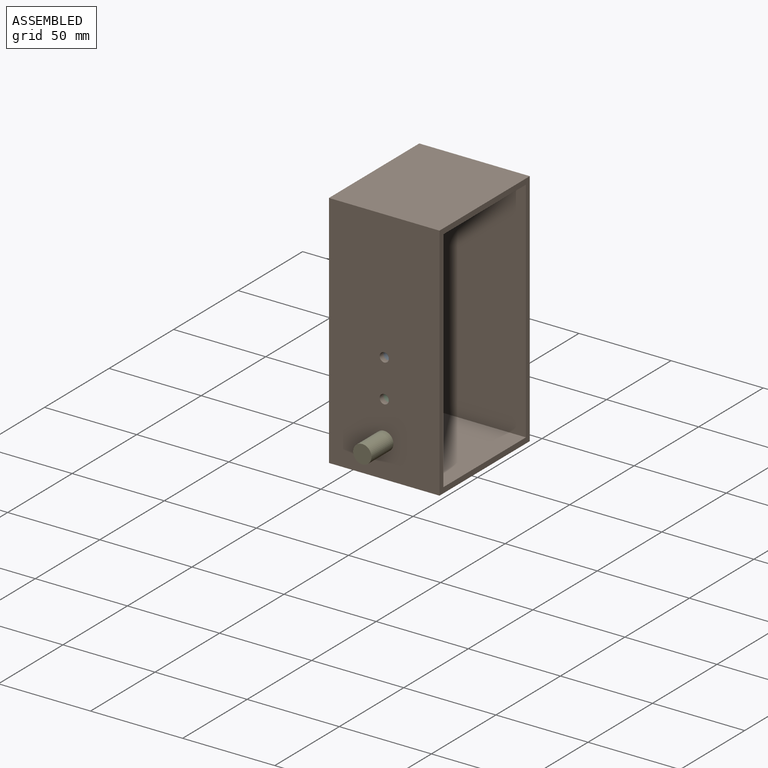
[diagram: assembled view]
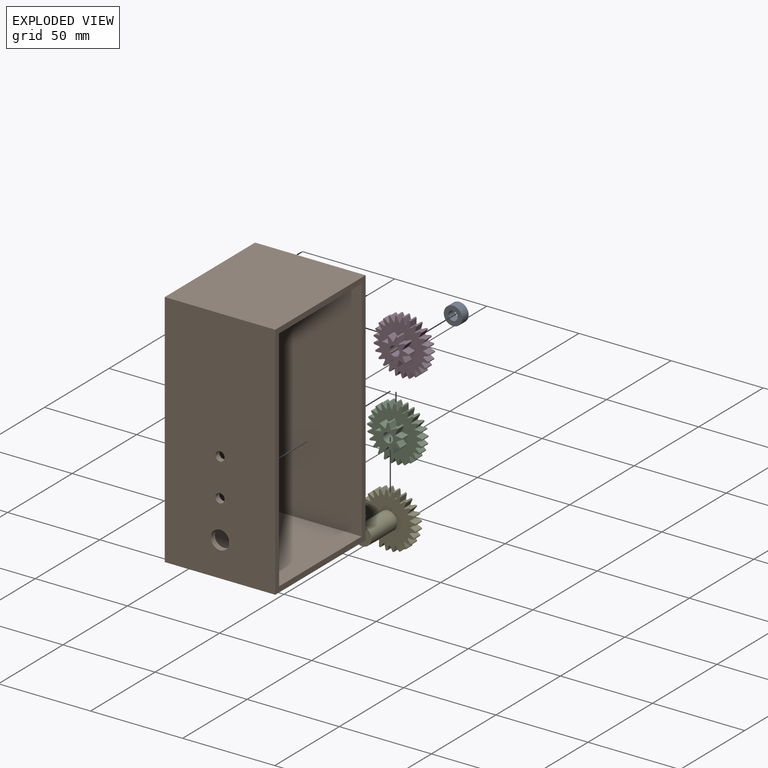
[diagram: exploded view]
GUIDED TOUR — MATED ASSEMBLY (Onshape document 443d9a24dce7691523443885, AutoMate assembly 443d9a24dce7691523443885_415664b027d2ea823bd47194_519f001d2ef782db38663c54_default)

This assembly has 5 components, labeled P0..P4 below (a component is one placed occurrence of a part; the same part can appear more than once), held together by 4 mates. A mate is a constraint between two components; its type names the relative motion it leaves free:
  PIN_SLOT — leaves rotation about the listed axis plus translation along a slot free,
  REVOLUTE — leaves rotation about the listed axis free (a hinge).
Axis/direction vectors are unit vectors and 'through' points are millimeter coordinates, both in the assembly's world frame.

MATES
  1. PIN_SLOT "Pin slot 4": P3 <-> P0, axis (0.000, -1.000, 0.000) through (14.98, 14.29, 70.05) mm
  2. PIN_SLOT "Pin slot 1": P2 <-> P1, axis (0.000, -1.000, 0.000) through (14.98, 9.29, 49.55) mm
  3. REVOLUTE "Revolute 1": P4 <-> P1, axis (0.000, 1.000, 0.000) through (14.98, 9.29, 29.05) mm
  4. PIN_SLOT "Pin slot 3": P0 <-> P1, axis (0.000, -1.000, 0.000) through (14.98, 9.29, 70.05) mm

ASSEMBLY ORDER
  1. P3 — the base component [order verified]
  2. P0 [order verified]
  3. P2 [order verified]
  4. P4 [order verified]
  5. P1 [order verified]
(P2, P4 verified with a relaxed clearance tolerance: the source model stores slight part interference there.)
Order-tag legend:
  [order verified] — this step's position reverses a verified removal order: the component was checked to insert without passing through the ones already placed.

Of the 5 components, 5 carry the full construction recipe — the FeatureScript program that regenerates the part's solid from scratch; the rest are supplied as boundary geometry only.
Each toured component is shown spotlighted twice — in the assembled view, then in the exploded view, where a leader line traces a displaced component back to its assembled socket (saturated green if recipe-attached, orange if geometry-only; every other component desaturated gray) — followed by its recipe or geometry summary and the mates that hold it.
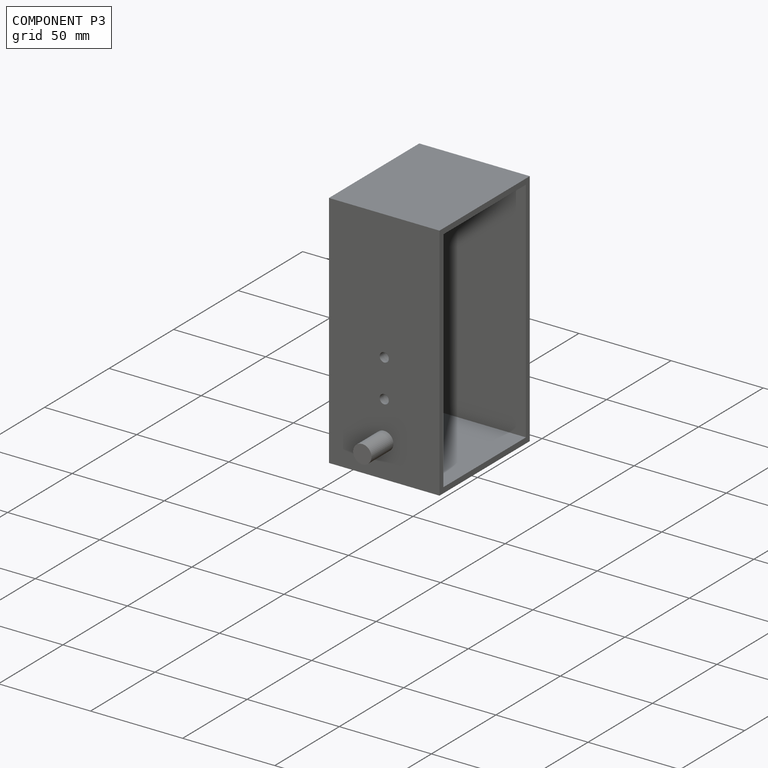
[diagram: component P3 — assembled]
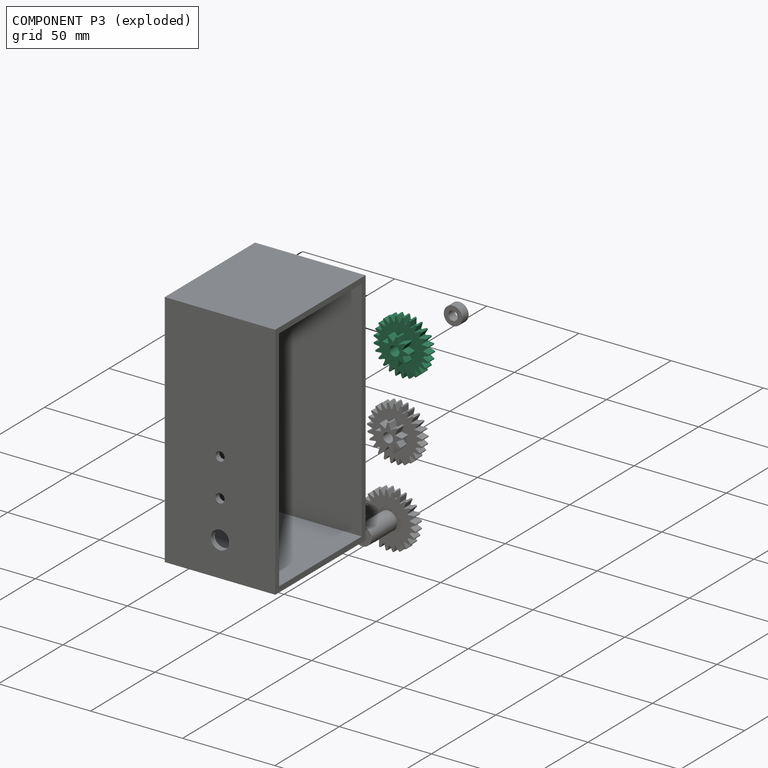
[diagram: component P3 — exploded]
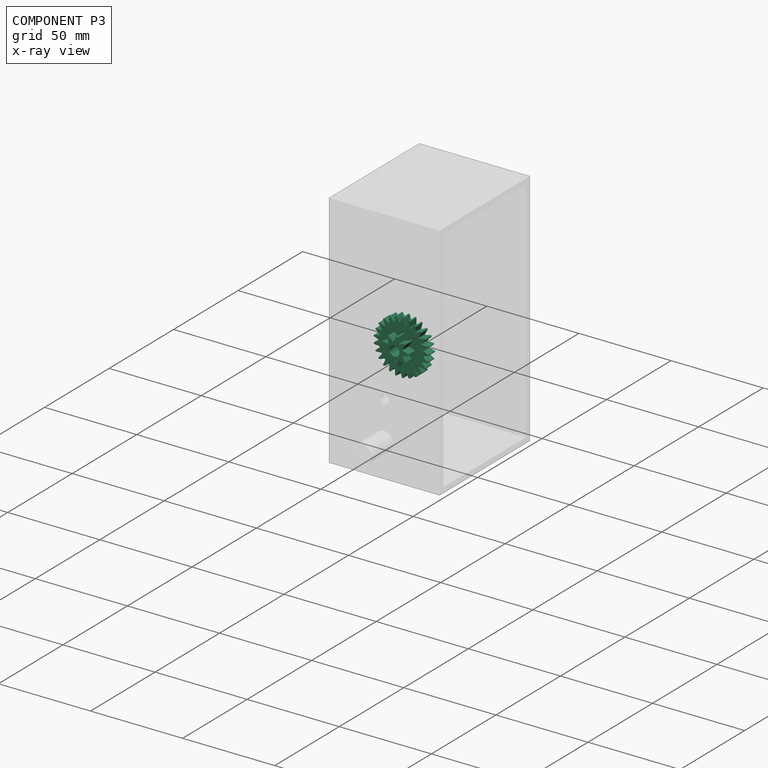
[diagram: component P3 — x-ray view]
COMPONENT P3 — same part as P2 (CADFS 00214775); its construction recipe is shown at P2.
Held by: PIN_SLOT mate "Pin slot 4" to P0.
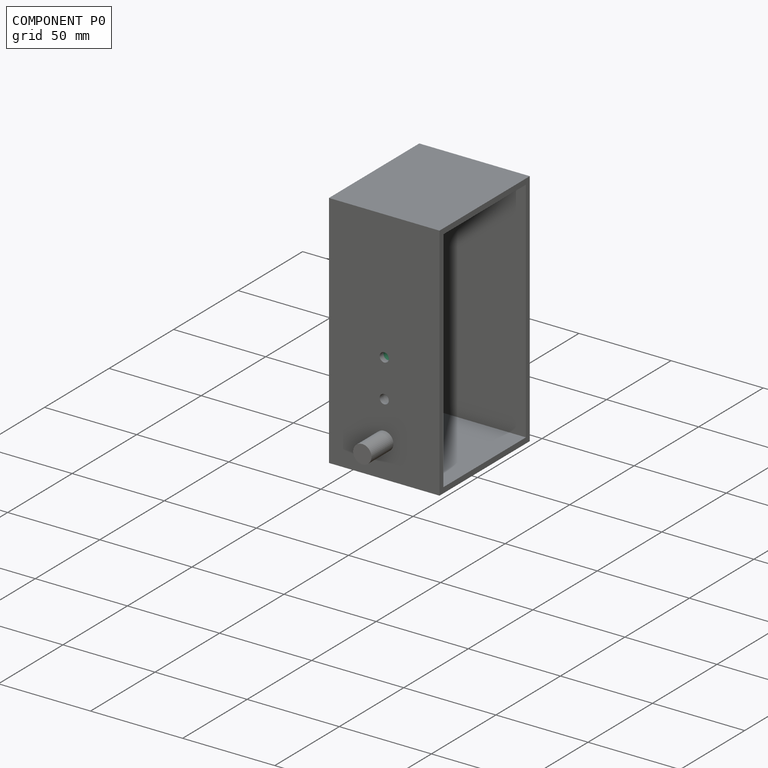
[diagram: component P0 — assembled]
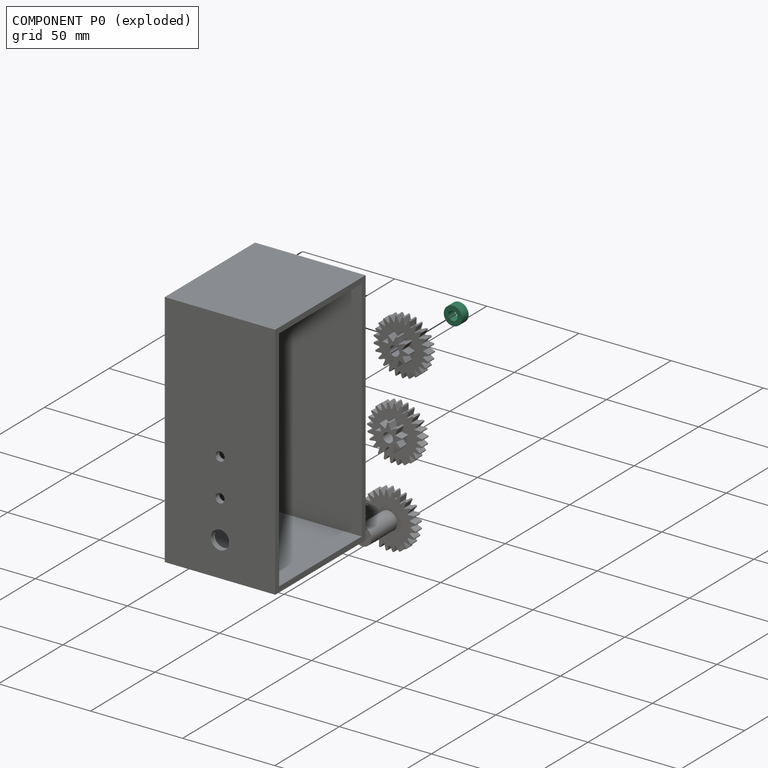
[diagram: component P0 — exploded]
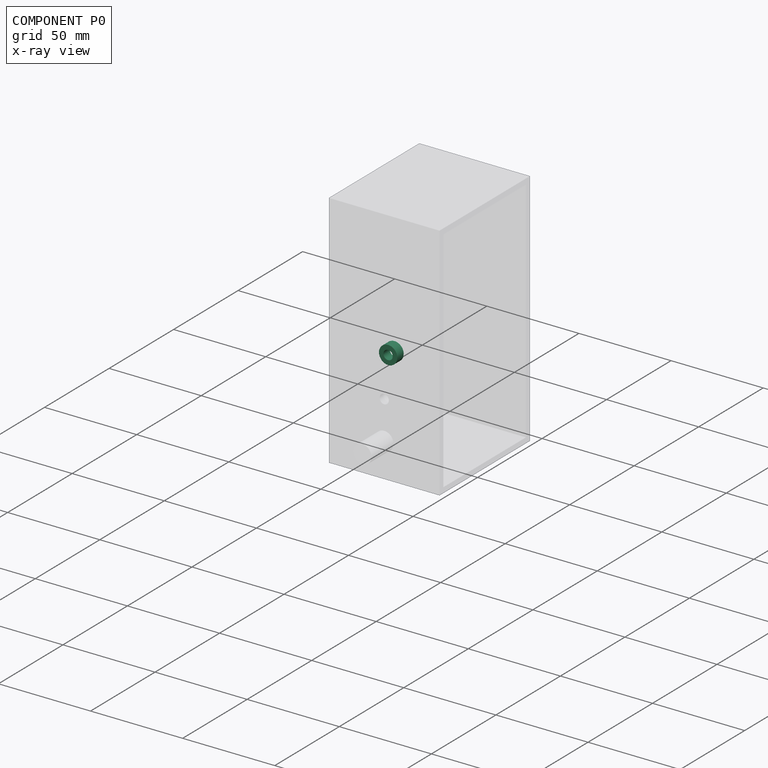
[diagram: component P0 — x-ray view]
COMPONENT P0 — recipe-attached (CADFS 00214777, mesh-verified: the recipe's output STEP matches this component's geometry to below the mesh-comparison resolution (tessellation chordal tolerance ~0.0225 mm)).
Held by: PIN_SLOT mate "Pin slot 4" to P3; PIN_SLOT mate "Pin slot 3" to P1.
Construction recipe (FeatureScript — the CAD program that rebuilds this solid; sketch coordinates are in the units given by the * unit suffixes, e.g. mm):

FeatureScript 1511;
import(path : "onshape/std/geometry.fs", version : "1511.0");
import(path : "onshape/std/common.fs", version : "1511.0");
const mm = millimeter;
const VERTEX = EntityType.VERTEX;
const EDGE = EntityType.EDGE;
const FACE = EntityType.FACE;
const BODY = EntityType.BODY;
function v(x, y){return vector(x, y);}
function OD(order){return orderDisambiguation(order);}
function OSD(set){return originalSetDisambiguation(set);}
function TD(topology){return topologyDisambiguation(topology);}
function TDD(query){return trueDependencyDisambiguation(query);}
function sQuery(a, b, c) {return sketchEntityQuery(a, b, c);}

annotation { "Feature Type Name" : "Feature", "Feature Type Description" : "" }
export const myFeature = defineFeature(function(context is Context, id is Id, definition is map)
    precondition{}
    {
        {
            var Q0;
            Q0=qCreatedBy(makeId("Right.planeOp"),FACE);
            var sketch = newSketch(context, id + "F0", { "sketchPlane" : qUnion([Q0])});
            skCircle(sketch, "E0", {"center": v(0, 0) * mm, "radius": 5 * mm});
            skCircle(sketch, "E1", {"center": v(0, 0) * mm, "radius": 2.5 * mm});
            skSolve(sketch);
        }
        {
            var Q0;
            Q0=makeQuery(id+"F0.imprint","IMPRINT",FACE,{"disambiguationData":[TD([[makeQuery(id+"F0.imprint","IMPRINT",EDGE,{"derivedFrom":sQuery(id+"F0.wireOp",EDGE,"E0")}),1.0]])]});
            extrude(context, id + "F1", {"entities" : qUnion([Q0]), "depth" : 5 * mm});
        }
    });
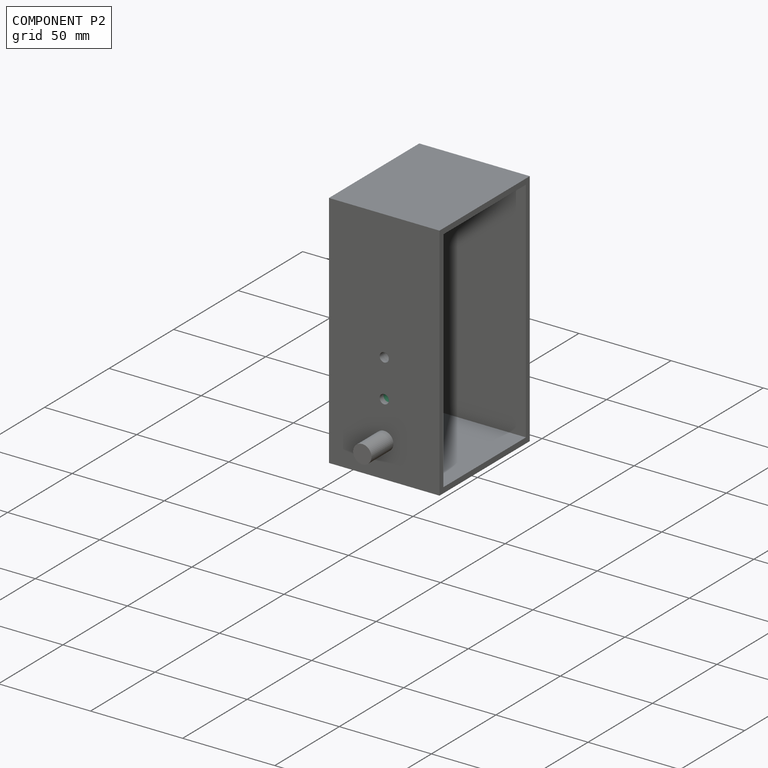
[diagram: component P2 — assembled]
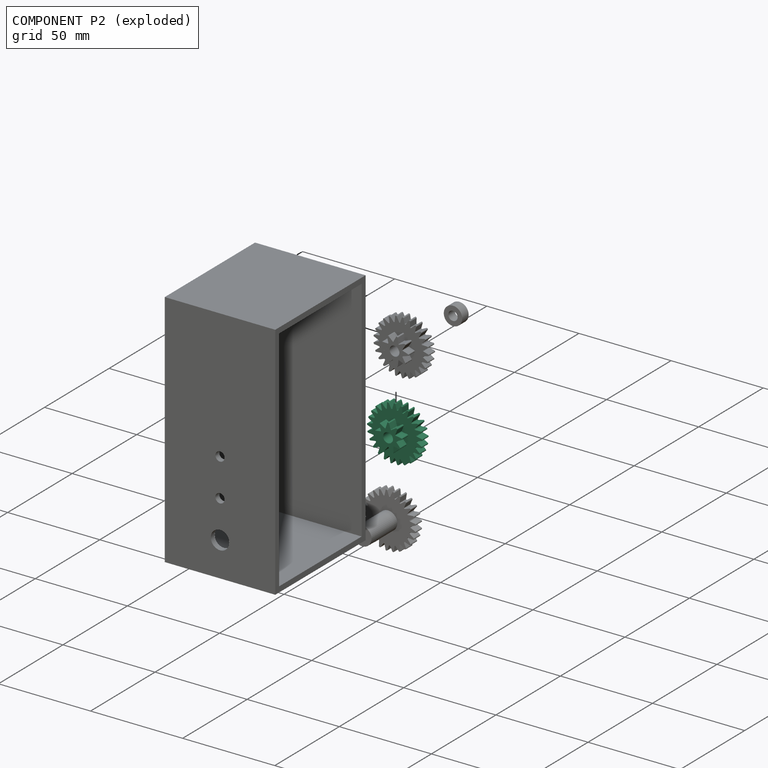
[diagram: component P2 — exploded]
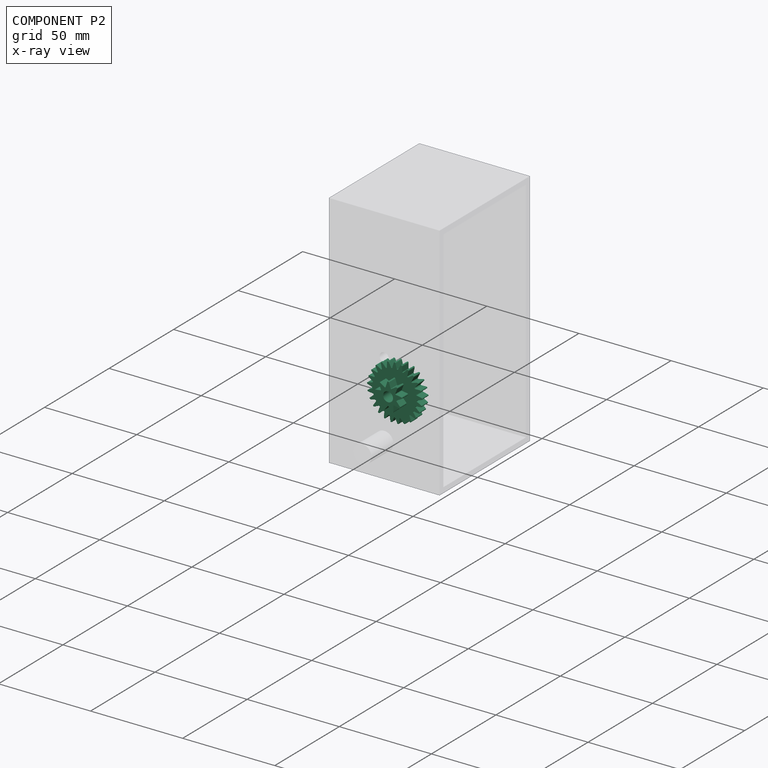
[diagram: component P2 — x-ray view]
COMPONENT P2 — recipe-attached (CADFS 00214775, mesh-verified: the recipe's output STEP matches this component's geometry to below the mesh-comparison resolution (tessellation chordal tolerance ~0.0652 mm)).
Held by: PIN_SLOT mate "Pin slot 1" to P1.
Construction recipe (FeatureScript — the CAD program that rebuilds this solid; sketch coordinates are in the units given by the * unit suffixes, e.g. mm):

FeatureScript 1511;
import(path : "onshape/std/geometry.fs", version : "1511.0");
import(path : "onshape/std/common.fs", version : "1511.0");
const mm = millimeter;
const VERTEX = EntityType.VERTEX;
const EDGE = EntityType.EDGE;
const FACE = EntityType.FACE;
const BODY = EntityType.BODY;
function v(x, y){return vector(x, y);}
function OD(order){return orderDisambiguation(order);}
function OSD(set){return originalSetDisambiguation(set);}
function TD(topology){return topologyDisambiguation(topology);}
function TDD(query){return trueDependencyDisambiguation(query);}
function sQuery(a, b, c) {return sketchEntityQuery(a, b, c);}

annotation { "Feature Type Name" : "Feature", "Feature Type Description" : "" }
export const myFeature = defineFeature(function(context is Context, id is Id, definition is map)
    precondition{}
    {
        {
            var Q0;
            Q0=qCreatedBy(makeId("Right.planeOp"),FACE);
            var sketch = newSketch(context, id + "F0", { "sketchPlane" : qUnion([Q0])});
            skArc(sketch, "E0", {"start": v(0.48, 14.64) * mm, "mid": v(0, 15) * mm, "end": v(-0.48, 14.64) * mm});
            skLineSegment(sketch, "E1", {"start": v(-0.48, 14.64) * mm, "end": v(-1.25, 11.93) * mm});
            skLineSegment(sketch, "E2.MirrorCS", {"start": v(0.48, 14.64) * mm, "end": v(1.25, 11.93) * mm});
            skCircle(sketch, "E3", {"center": v(0, 0) * mm, "radius": 12 * mm});
            skLineSegment(sketch, "E4", {"start": v(0, 0) * mm, "end": v(0, 9.86) * mm, "construction": true});
            skLineSegment(sketch, "E5.1.0", {"start": v(-4.1, 14.06) * mm, "end": v(-4.18, 11.25) * mm});
            skArc(sketch, "E5.1.1", {"start": v(-3.17, 14.3) * mm, "mid": v(-3.73, 14.53) * mm, "end": v(-4.1, 14.06) * mm});
            skLineSegment(sketch, "E5.1.2", {"start": v(-3.17, 14.3) * mm, "end": v(-1.76, 11.87) * mm});
            skLineSegment(sketch, "E5.2.0", {"start": v(-7.47, 12.6) * mm, "end": v(-6.85, 9.86) * mm});
            skArc(sketch, "E5.2.1", {"start": v(-6.63, 13.06) * mm, "mid": v(-7.23, 13.14) * mm, "end": v(-7.47, 12.6) * mm});
            skLineSegment(sketch, "E5.2.2", {"start": v(-6.63, 13.06) * mm, "end": v(-4.65, 11.06) * mm});
            skLineSegment(sketch, "E5.3.0", {"start": v(-10.37, 10.34) * mm, "end": v(-9.08, 7.84) * mm});
            skArc(sketch, "E5.3.1", {"start": v(-9.67, 11) * mm, "mid": v(-10.27, 10.93) * mm, "end": v(-10.37, 10.34) * mm});
            skLineSegment(sketch, "E5.3.2", {"start": v(-9.67, 11) * mm, "end": v(-7.26, 9.56) * mm});
            skArc(sketch, "E5.3.3", {"start": v(-9.08, 7.84) * mm, "mid": v(8.21, -8.75) * mm, "end": v(-7.26, 9.56) * mm});
            skLineSegment(sketch, "E5.4.0", {"start": v(-12.62, 7.44) * mm, "end": v(-10.75, 5.34) * mm});
            skArc(sketch, "E5.4.1", {"start": v(-12.1, 8.25) * mm, "mid": v(-12.66, 8.04) * mm, "end": v(-12.62, 7.44) * mm});
            skLineSegment(sketch, "E5.4.2", {"start": v(-12.1, 8.25) * mm, "end": v(-9.4, 7.45) * mm});
            skLineSegment(sketch, "E5.5.0", {"start": v(-14.07, 4.07) * mm, "end": v(-11.74, 2.5) * mm});
            skArc(sketch, "E5.5.1", {"start": v(-13.77, 4.98) * mm, "mid": v(-14.27, 4.64) * mm, "end": v(-14.07, 4.07) * mm});
            skLineSegment(sketch, "E5.5.2", {"start": v(-13.77, 4.98) * mm, "end": v(-10.96, 4.88) * mm});
            skLineSegment(sketch, "E5.6.0", {"start": v(-14.64, 0.44) * mm, "end": v(-11.99, -0.5) * mm});
            skArc(sketch, "E5.6.1", {"start": v(-14.58, 1.4) * mm, "mid": v(-14.97, 0.94) * mm, "end": v(-14.64, 0.44) * mm});
            skLineSegment(sketch, "E5.6.2", {"start": v(-14.58, 1.4) * mm, "end": v(-11.83, 2) * mm});
            skLineSegment(sketch, "E5.7.0", {"start": v(-14.29, -3.22) * mm, "end": v(-11.49, -3.47) * mm});
            skArc(sketch, "E5.7.1", {"start": v(-14.47, -2.27) * mm, "mid": v(-14.73, -2.81) * mm, "end": v(-14.29, -3.22) * mm});
            skLineSegment(sketch, "E5.7.2", {"start": v(-14.47, -2.27) * mm, "end": v(-11.96, -1) * mm});
            skLineSegment(sketch, "E5.8.0", {"start": v(-13.04, -6.67) * mm, "end": v(-10.27, -6.21) * mm});
            skArc(sketch, "E5.8.1", {"start": v(-13.45, -5.8) * mm, "mid": v(-13.57, -6.39) * mm, "end": v(-13.04, -6.67) * mm});
            skLineSegment(sketch, "E5.8.2", {"start": v(-13.45, -5.8) * mm, "end": v(-11.33, -3.95) * mm});
            skLineSegment(sketch, "E5.9.0", {"start": v(-10.97, -9.7) * mm, "end": v(-8.4, -8.57) * mm});
            skArc(sketch, "E5.9.1", {"start": v(-11.58, -8.96) * mm, "mid": v(-11.56, -9.56) * mm, "end": v(-10.97, -9.7) * mm});
            skLineSegment(sketch, "E5.9.2", {"start": v(-11.58, -8.96) * mm, "end": v(-10, -6.64) * mm});
            skLineSegment(sketch, "E5.10.0", {"start": v(-8.21, -12.12) * mm, "end": v(-6, -10.4) * mm});
            skArc(sketch, "E5.10.1", {"start": v(-9, -11.56) * mm, "mid": v(-8.82, -12.14) * mm, "end": v(-8.21, -12.12) * mm});
            skLineSegment(sketch, "E5.10.2", {"start": v(-9, -11.56) * mm, "end": v(-8.03, -8.92) * mm});
            skLineSegment(sketch, "E5.11.0", {"start": v(-4.94, -13.79) * mm, "end": v(-3.23, -11.56) * mm});
            skArc(sketch, "E5.11.1", {"start": v(-5.84, -13.43) * mm, "mid": v(-5.52, -13.95) * mm, "end": v(-4.94, -13.79) * mm});
            skLineSegment(sketch, "E5.11.2", {"start": v(-5.84, -13.43) * mm, "end": v(-5.56, -10.64) * mm});
            skArc(sketch, "E5.11.3", {"start": v(-9.08, 7.84) * mm, "mid": v(8.21, -8.75) * mm, "end": v(-7.26, 9.56) * mm});
            skLineSegment(sketch, "E5.12.0", {"start": v(-1.36, -14.58) * mm, "end": v(-0.25, -12) * mm});
            skArc(sketch, "E5.12.1", {"start": v(-2.31, -14.46) * mm, "mid": v(-1.88, -14.88) * mm, "end": v(-1.36, -14.58) * mm});
            skLineSegment(sketch, "E5.12.2", {"start": v(-2.31, -14.46) * mm, "end": v(-2.74, -11.68) * mm});
            skLineSegment(sketch, "E5.13.0", {"start": v(2.31, -14.46) * mm, "end": v(2.74, -11.68) * mm});
            skArc(sketch, "E5.13.1", {"start": v(1.36, -14.58) * mm, "mid": v(1.88, -14.88) * mm, "end": v(2.31, -14.46) * mm});
            skLineSegment(sketch, "E5.13.2", {"start": v(1.36, -14.58) * mm, "end": v(0.25, -12) * mm});
            skLineSegment(sketch, "E5.14.0", {"start": v(5.84, -13.43) * mm, "end": v(5.56, -10.64) * mm});
            skArc(sketch, "E5.14.1", {"start": v(4.94, -13.79) * mm, "mid": v(5.52, -13.95) * mm, "end": v(5.84, -13.43) * mm});
            skLineSegment(sketch, "E5.14.2", {"start": v(4.94, -13.79) * mm, "end": v(3.23, -11.56) * mm});
            skLineSegment(sketch, "E5.15.0", {"start": v(9, -11.56) * mm, "end": v(8.03, -8.92) * mm});
            skArc(sketch, "E5.15.1", {"start": v(8.21, -12.12) * mm, "mid": v(8.82, -12.14) * mm, "end": v(9, -11.56) * mm});
            skLineSegment(sketch, "E5.15.2", {"start": v(8.21, -12.12) * mm, "end": v(6, -10.4) * mm});
            skArc(sketch, "E5.15.3", {"start": v(-9.08, 7.84) * mm, "mid": v(8.21, -8.75) * mm, "end": v(-7.26, 9.56) * mm});
            skLineSegment(sketch, "E5.16.0", {"start": v(11.58, -8.96) * mm, "end": v(10, -6.64) * mm});
            skArc(sketch, "E5.16.1", {"start": v(10.97, -9.7) * mm, "mid": v(11.56, -9.56) * mm, "end": v(11.58, -8.96) * mm});
            skLineSegment(sketch, "E5.16.2", {"start": v(10.97, -9.7) * mm, "end": v(8.4, -8.57) * mm});
            skLineSegment(sketch, "E5.17.0", {"start": v(13.45, -5.8) * mm, "end": v(11.33, -3.95) * mm});
            skArc(sketch, "E5.17.1", {"start": v(13.04, -6.67) * mm, "mid": v(13.57, -6.39) * mm, "end": v(13.45, -5.8) * mm});
            skLineSegment(sketch, "E5.17.2", {"start": v(13.04, -6.67) * mm, "end": v(10.27, -6.21) * mm});
            skLineSegment(sketch, "E5.18.0", {"start": v(14.47, -2.27) * mm, "end": v(11.96, -1) * mm});
            skArc(sketch, "E5.18.1", {"start": v(14.29, -3.22) * mm, "mid": v(14.73, -2.81) * mm, "end": v(14.47, -2.27) * mm});
            skLineSegment(sketch, "E5.18.2", {"start": v(14.29, -3.22) * mm, "end": v(11.49, -3.47) * mm});
            skLineSegment(sketch, "E5.19.0", {"start": v(14.58, 1.4) * mm, "end": v(11.83, 2) * mm});
            skArc(sketch, "E5.19.1", {"start": v(14.64, 0.44) * mm, "mid": v(14.97, 0.94) * mm, "end": v(14.58, 1.4) * mm});
            skLineSegment(sketch, "E5.19.2", {"start": v(14.64, 0.44) * mm, "end": v(11.99, -0.5) * mm});
            skLineSegment(sketch, "E5.20.0", {"start": v(13.77, 4.98) * mm, "end": v(10.96, 4.88) * mm});
            skArc(sketch, "E5.20.1", {"start": v(14.07, 4.07) * mm, "mid": v(14.27, 4.64) * mm, "end": v(13.77, 4.98) * mm});
            skLineSegment(sketch, "E5.20.2", {"start": v(14.07, 4.07) * mm, "end": v(11.74, 2.5) * mm});
            skLineSegment(sketch, "E5.21.0", {"start": v(12.1, 8.25) * mm, "end": v(9.4, 7.45) * mm});
            skArc(sketch, "E5.21.1", {"start": v(12.62, 7.44) * mm, "mid": v(12.66, 8.04) * mm, "end": v(12.1, 8.25) * mm});
            skLineSegment(sketch, "E5.21.2", {"start": v(12.62, 7.44) * mm, "end": v(10.75, 5.34) * mm});
            skLineSegment(sketch, "E5.22.0", {"start": v(9.67, 11) * mm, "end": v(7.26, 9.56) * mm});
            skArc(sketch, "E5.22.1", {"start": v(10.37, 10.34) * mm, "mid": v(10.27, 10.93) * mm, "end": v(9.67, 11) * mm});
            skLineSegment(sketch, "E5.22.2", {"start": v(10.37, 10.34) * mm, "end": v(9.08, 7.84) * mm});
            skLineSegment(sketch, "E6.2.23.0", {"start": v(6.63, 13.06) * mm, "end": v(4.65, 11.06) * mm});
            skArc(sketch, "E6.3.23.0", {"start": v(7.47, 12.6) * mm, "mid": v(7.23, 13.14) * mm, "end": v(6.63, 13.06) * mm});
            skLineSegment(sketch, "E6.7.23.0", {"start": v(7.47, 12.6) * mm, "end": v(6.85, 9.86) * mm});
            skLineSegment(sketch, "E6.2.24.0", {"start": v(3.17, 14.3) * mm, "end": v(1.76, 11.87) * mm});
            skArc(sketch, "E6.3.24.0", {"start": v(4.1, 14.06) * mm, "mid": v(3.73, 14.53) * mm, "end": v(3.17, 14.3) * mm});
            skLineSegment(sketch, "E6.7.24.0", {"start": v(4.1, 14.06) * mm, "end": v(4.18, 11.25) * mm});
            skSolve(sketch);
        }
        {
            var Q0;
            Q0=qSketchRegion(id+"F0",true);
            extrude(context, id + "F1", {"entities" : qUnion([Q0]), "depth" : 5 * mm});
        }
        {
            var Q0;
            Q0=makeQuery(id+"F1.opExtrude","CAP_FACE",FACE,{"disambiguationData":[OSD([sQuery(id+"F0.wireOp",EDGE,"E0"),sQuery(id+"F0.wireOp",EDGE,"E1"),sQuery(id+"F0.wireOp",EDGE,"E2.MirrorCS"),sQuery(id+"F0.wireOp",EDGE,"E5.1.0"),sQuery(id+"F0.wireOp",EDGE,"E5.1.1"),sQuery(id+"F0.wireOp",EDGE,"E5.1.2"),sQuery(id+"F0.wireOp",EDGE,"E5.2.0"),sQuery(id+"F0.wireOp",EDGE,"E5.2.1"),sQuery(id+"F0.wireOp",EDGE,"E5.2.2"),sQuery(id+"F0.wireOp",EDGE,"E5.3.0"),sQuery(id+"F0.wireOp",EDGE,"E5.3.1"),sQuery(id+"F0.wireOp",EDGE,"E5.3.2"),sQuery(id+"F0.wireOp",EDGE,"E5.4.0"),sQuery(id+"F0.wireOp",EDGE,"E5.4.1"),sQuery(id+"F0.wireOp",EDGE,"E5.4.2"),sQuery(id+"F0.wireOp",EDGE,"E5.5.0"),sQuery(id+"F0.wireOp",EDGE,"E5.5.1"),sQuery(id+"F0.wireOp",EDGE,"E5.5.2"),sQuery(id+"F0.wireOp",EDGE,"E5.6.0"),sQuery(id+"F0.wireOp",EDGE,"E5.6.1"),sQuery(id+"F0.wireOp",EDGE,"E5.6.2"),sQuery(id+"F0.wireOp",EDGE,"E5.7.0"),sQuery(id+"F0.wireOp",EDGE,"E5.7.1"),sQuery(id+"F0.wireOp",EDGE,"E5.7.2"),sQuery(id+"F0.wireOp",EDGE,"E5.8.0"),sQuery(id+"F0.wireOp",EDGE,"E5.8.1"),sQuery(id+"F0.wireOp",EDGE,"E5.8.2"),sQuery(id+"F0.wireOp",EDGE,"E5.9.0"),sQuery(id+"F0.wireOp",EDGE,"E5.9.1"),sQuery(id+"F0.wireOp",EDGE,"E5.9.2"),sQuery(id+"F0.wireOp",EDGE,"E5.10.0"),sQuery(id+"F0.wireOp",EDGE,"E5.10.1"),sQuery(id+"F0.wireOp",EDGE,"E5.10.2"),sQuery(id+"F0.wireOp",EDGE,"E5.11.0"),sQuery(id+"F0.wireOp",EDGE,"E5.11.1"),sQuery(id+"F0.wireOp",EDGE,"E5.11.2"),sQuery(id+"F0.wireOp",EDGE,"E5.12.0"),sQuery(id+"F0.wireOp",EDGE,"E5.12.1"),sQuery(id+"F0.wireOp",EDGE,"E5.12.2"),sQuery(id+"F0.wireOp",EDGE,"E5.13.0"),sQuery(id+"F0.wireOp",EDGE,"E5.13.1"),sQuery(id+"F0.wireOp",EDGE,"E5.13.2"),sQuery(id+"F0.wireOp",EDGE,"E5.14.0"),sQuery(id+"F0.wireOp",EDGE,"E5.14.1"),sQuery(id+"F0.wireOp",EDGE,"E5.14.2"),sQuery(id+"F0.wireOp",EDGE,"E5.15.0"),sQuery(id+"F0.wireOp",EDGE,"E5.15.1"),sQuery(id+"F0.wireOp",EDGE,"E5.15.2"),sQuery(id+"F0.wireOp",EDGE,"E5.16.0"),sQuery(id+"F0.wireOp",EDGE,"E5.16.1"),sQuery(id+"F0.wireOp",EDGE,"E5.16.2"),sQuery(id+"F0.wireOp",EDGE,"E5.17.0"),sQuery(id+"F0.wireOp",EDGE,"E5.17.1"),sQuery(id+"F0.wireOp",EDGE,"E5.17.2"),sQuery(id+"F0.wireOp",EDGE,"E5.18.0"),sQuery(id+"F0.wireOp",EDGE,"E5.18.1"),sQuery(id+"F0.wireOp",EDGE,"E5.18.2"),sQuery(id+"F0.wireOp",EDGE,"E5.19.0"),sQuery(id+"F0.wireOp",EDGE,"E5.19.1"),sQuery(id+"F0.wireOp",EDGE,"E5.19.2"),sQuery(id+"F0.wireOp",EDGE,"E5.20.0"),sQuery(id+"F0.wireOp",EDGE,"E5.20.1"),sQuery(id+"F0.wireOp",EDGE,"E5.20.2"),sQuery(id+"F0.wireOp",EDGE,"E5.21.0"),sQuery(id+"F0.wireOp",EDGE,"E5.21.1"),sQuery(id+"F0.wireOp",EDGE,"E5.21.2"),sQuery(id+"F0.wireOp",EDGE,"E5.22.0"),sQuery(id+"F0.wireOp",EDGE,"E5.22.1"),sQuery(id+"F0.wireOp",EDGE,"E5.22.2"),sQuery(id+"F0.wireOp",EDGE,"E6.2.23.0"),sQuery(id+"F0.wireOp",EDGE,"E6.3.23.0"),sQuery(id+"F0.wireOp",EDGE,"E6.7.23.0"),sQuery(id+"F0.wireOp",EDGE,"E6.2.24.0"),sQuery(id+"F0.wireOp",EDGE,"E6.3.24.0"),sQuery(id+"F0.wireOp",EDGE,"E6.7.24.0"),sQuery(id+"F0.wireOp",EDGE,"E3")])],"isStart":false});
            var sketch = newSketch(context, id + "F2", { "sketchPlane" : qUnion([Q0])});
            skCircle(sketch, "E7", {"center": v(0, 0) * mm, "radius": 7.5 * mm, "construction": true});
            skArc(sketch, "E8", {"start": v(0.48, 7.15) * mm, "mid": v(0, 7.5) * mm, "end": v(-0.48, 7.15) * mm});
            skLineSegment(sketch, "E9", {"start": v(-0.48, 7.15) * mm, "end": v(-1.41, 4.27) * mm});
            skLineSegment(sketch, "E10", {"start": v(0, 3.4) * mm, "end": v(0, 1.15) * mm, "construction": true});
            skLineSegment(sketch, "E11.MirrorCS", {"start": v(0.48, 7.15) * mm, "end": v(1.41, 4.27) * mm});
            skLineSegment(sketch, "E12.1.0", {"start": v(-4.96, 5.18) * mm, "end": v(-3.83, 2.37) * mm});
            skArc(sketch, "E12.1.1", {"start": v(-4.23, 5.79) * mm, "mid": v(-4.82, 5.75) * mm, "end": v(-4.96, 5.18) * mm});
            skLineSegment(sketch, "E12.1.2", {"start": v(-4.23, 5.79) * mm, "end": v(-1.66, 4.18) * mm});
            skLineSegment(sketch, "E12.2.0", {"start": v(-7.13, 0.77) * mm, "end": v(-4.45, -0.65) * mm});
            skArc(sketch, "E12.2.1", {"start": v(-6.96, 1.71) * mm, "mid": v(-7.39, 1.3) * mm, "end": v(-7.13, 0.77) * mm});
            skLineSegment(sketch, "E12.2.2", {"start": v(-6.96, 1.71) * mm, "end": v(-3.96, 2.13) * mm});
            skLineSegment(sketch, "E12.3.0", {"start": v(-5.96, -3.99) * mm, "end": v(-3, -3.36) * mm});
            skArc(sketch, "E12.3.1", {"start": v(-6.43, -3.17) * mm, "mid": v(-6.5, -3.75) * mm, "end": v(-5.96, -3.99) * mm});
            skLineSegment(sketch, "E12.3.2", {"start": v(-6.43, -3.17) * mm, "end": v(-4.4, -0.91) * mm});
            skLineSegment(sketch, "E12.4.0", {"start": v(-2, -6.89) * mm, "end": v(-0.13, -4.5) * mm});
            skArc(sketch, "E12.4.1", {"start": v(-2.9, -6.56) * mm, "mid": v(-2.57, -7.05) * mm, "end": v(-2, -6.89) * mm});
            skLineSegment(sketch, "E12.4.2", {"start": v(-2.9, -6.56) * mm, "end": v(-2.79, -3.53) * mm});
            skLineSegment(sketch, "E12.5.0", {"start": v(2.9, -6.56) * mm, "end": v(2.79, -3.53) * mm});
            skArc(sketch, "E12.5.1", {"start": v(2, -6.89) * mm, "mid": v(2.57, -7.05) * mm, "end": v(2.9, -6.56) * mm});
            skLineSegment(sketch, "E12.5.2", {"start": v(2, -6.89) * mm, "end": v(0.13, -4.5) * mm});
            skLineSegment(sketch, "E12.6.0", {"start": v(6.43, -3.17) * mm, "end": v(4.4, -0.91) * mm});
            skArc(sketch, "E12.6.1", {"start": v(5.96, -3.99) * mm, "mid": v(6.5, -3.75) * mm, "end": v(6.43, -3.17) * mm});
            skLineSegment(sketch, "E12.6.2", {"start": v(5.96, -3.99) * mm, "end": v(3, -3.36) * mm});
            skLineSegment(sketch, "E12.7.0", {"start": v(6.96, 1.71) * mm, "end": v(3.96, 2.13) * mm});
            skArc(sketch, "E12.7.1", {"start": v(7.13, 0.77) * mm, "mid": v(7.39, 1.3) * mm, "end": v(6.96, 1.71) * mm});
            skLineSegment(sketch, "E12.7.2", {"start": v(7.13, 0.77) * mm, "end": v(4.45, -0.65) * mm});
            skLineSegment(sketch, "E12.8.0", {"start": v(4.23, 5.79) * mm, "end": v(1.66, 4.18) * mm});
            skArc(sketch, "E12.8.1", {"start": v(4.96, 5.18) * mm, "mid": v(4.82, 5.75) * mm, "end": v(4.23, 5.79) * mm});
            skLineSegment(sketch, "E12.8.2", {"start": v(4.96, 5.18) * mm, "end": v(3.83, 2.37) * mm});
            skArc(sketch, "E13.trimOffspring", {"start": v(-1.41, 4.27) * mm, "mid": v(-1.54, 4.23) * mm, "end": v(-1.66, 4.18) * mm});
            skArc(sketch, "E14.trimOffspring", {"start": v(1.66, 4.18) * mm, "mid": v(1.54, 4.23) * mm, "end": v(1.41, 4.27) * mm});
            skArc(sketch, "E15.trimOffspring", {"start": v(3.96, 2.13) * mm, "mid": v(3.9, 2.25) * mm, "end": v(3.83, 2.37) * mm});
            skArc(sketch, "E16.trimOffspring", {"start": v(-4.45, -0.65) * mm, "mid": v(-4.43, -0.78) * mm, "end": v(-4.4, -0.91) * mm});
            skArc(sketch, "E17.trimOffspring", {"start": v(-3, -3.36) * mm, "mid": v(-2.9, -3.45) * mm, "end": v(-2.79, -3.53) * mm});
            skArc(sketch, "E18.trimOffspring", {"start": v(-0.13, -4.5) * mm, "mid": v(0, -4.5) * mm, "end": v(0.13, -4.5) * mm});
            skArc(sketch, "E19.trimOffspring", {"start": v(2.79, -3.53) * mm, "mid": v(2.9, -3.45) * mm, "end": v(3, -3.36) * mm});
            skArc(sketch, "E20.trimOffspring", {"start": v(4.4, -0.91) * mm, "mid": v(4.43, -0.78) * mm, "end": v(4.45, -0.65) * mm});
            skArc(sketch, "E21", {"start": v(-3.83, 2.37) * mm, "mid": v(-3.9, 2.25) * mm, "end": v(-3.96, 2.13) * mm});
            skSolve(sketch);
        }
        {
            var Q0;
            Q0=makeQuery(id+"F2.imprint","IMPRINT",FACE,{"disambiguationData":[TD([[makeQuery(id+"F2.imprint","IMPRINT",EDGE,{"derivedFrom":sQuery(id+"F2.wireOp",EDGE,"E8")}),1.0]])]});
            extrude(context, id + "F3", {"entities" : qUnion([Q0]), "operationType" : NewBodyOperationType.ADD, "depth" : 5 * mm});
        }
        {
            var Q0;
            Q0=makeQuery(id+"F3.opExtrude","CAP_FACE",FACE,{"disambiguationData":[OSD([sQuery(id+"F2.wireOp",EDGE,"E8"),sQuery(id+"F2.wireOp",EDGE,"E9"),sQuery(id+"F2.wireOp",EDGE,"E11.MirrorCS"),sQuery(id+"F2.wireOp",EDGE,"E12.1.0"),sQuery(id+"F2.wireOp",EDGE,"E12.1.1"),sQuery(id+"F2.wireOp",EDGE,"E12.1.2"),sQuery(id+"F2.wireOp",EDGE,"E12.2.0"),sQuery(id+"F2.wireOp",EDGE,"E12.2.1"),sQuery(id+"F2.wireOp",EDGE,"E12.2.2"),sQuery(id+"F2.wireOp",EDGE,"E12.3.0"),sQuery(id+"F2.wireOp",EDGE,"E12.3.1"),sQuery(id+"F2.wireOp",EDGE,"E12.3.2"),sQuery(id+"F2.wireOp",EDGE,"E12.4.0"),sQuery(id+"F2.wireOp",EDGE,"E12.4.1"),sQuery(id+"F2.wireOp",EDGE,"E12.4.2"),sQuery(id+"F2.wireOp",EDGE,"E12.5.0"),sQuery(id+"F2.wireOp",EDGE,"E12.5.1"),sQuery(id+"F2.wireOp",EDGE,"E12.5.2"),sQuery(id+"F2.wireOp",EDGE,"E12.6.0"),sQuery(id+"F2.wireOp",EDGE,"E12.6.1"),sQuery(id+"F2.wireOp",EDGE,"E12.6.2"),sQuery(id+"F2.wireOp",EDGE,"E12.7.0"),sQuery(id+"F2.wireOp",EDGE,"E12.7.1"),sQuery(id+"F2.wireOp",EDGE,"E12.7.2"),sQuery(id+"F2.wireOp",EDGE,"E12.8.0"),sQuery(id+"F2.wireOp",EDGE,"E12.8.1"),sQuery(id+"F2.wireOp",EDGE,"E12.8.2"),sQuery(id+"F2.wireOp",EDGE,"E13.trimOffspring"),sQuery(id+"F2.wireOp",EDGE,"E14.trimOffspring"),sQuery(id+"F2.wireOp",EDGE,"E15.trimOffspring"),sQuery(id+"F2.wireOp",EDGE,"E16.trimOffspring"),sQuery(id+"F2.wireOp",EDGE,"E17.trimOffspring"),sQuery(id+"F2.wireOp",EDGE,"E18.trimOffspring"),sQuery(id+"F2.wireOp",EDGE,"E19.trimOffspring"),sQuery(id+"F2.wireOp",EDGE,"E20.trimOffspring"),sQuery(id+"F2.wireOp",EDGE,"E21")])],"isStart":false});
            var sketch = newSketch(context, id + "F4", { "sketchPlane" : qUnion([Q0])});
            skCircle(sketch, "E22", {"center": v(0, 0) * mm, "radius": 2.66 * mm});
            skSolve(sketch);
        }
        {
            var Q0;
            Q0=makeQuery(id+"F4.imprint","IMPRINT",FACE,{"disambiguationData":[TD([[makeQuery(id+"F4.imprint","IMPRINT",EDGE,{"derivedFrom":sQuery(id+"F4.wireOp",EDGE,"E22")}),1.0]])]});
            extrude(context, id + "F5", {"entities" : qUnion([Q0]), "operationType" : NewBodyOperationType.REMOVE, "endBound" : BoundingType.THROUGH_ALL, "oppositeDirection" : true, "depth" : 25 * mm});
        }
    });
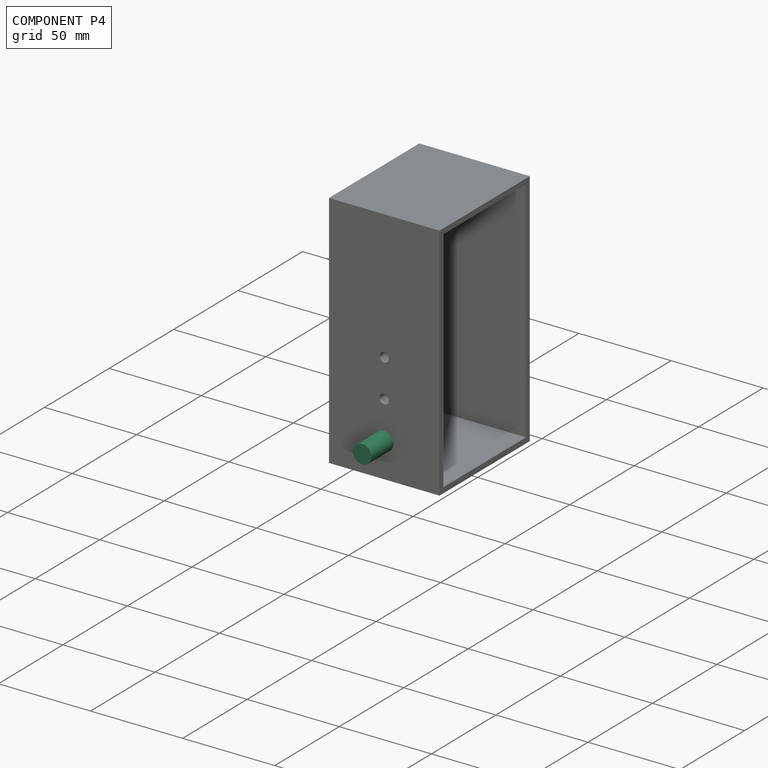
[diagram: component P4 — assembled]
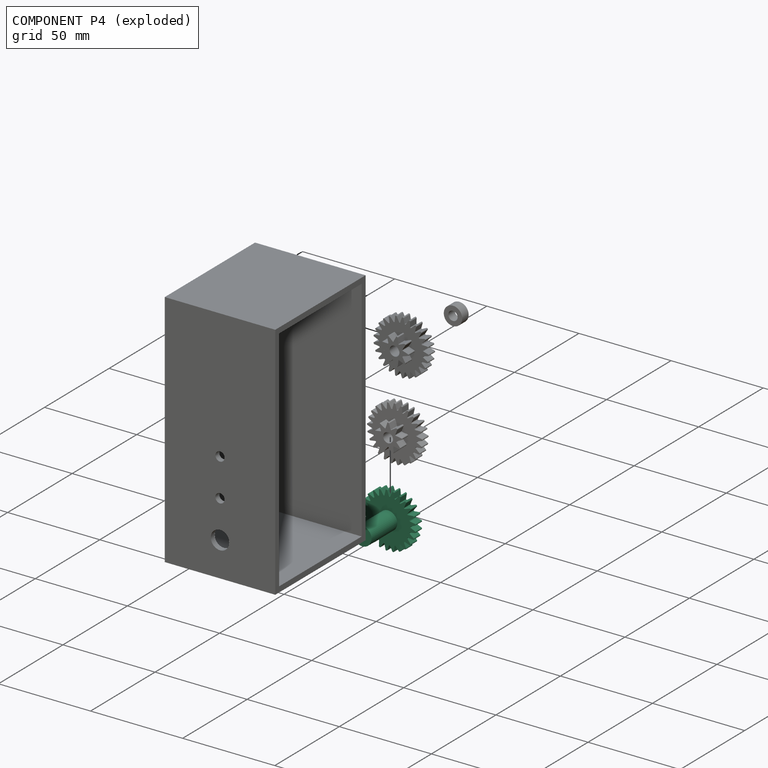
[diagram: component P4 — exploded]
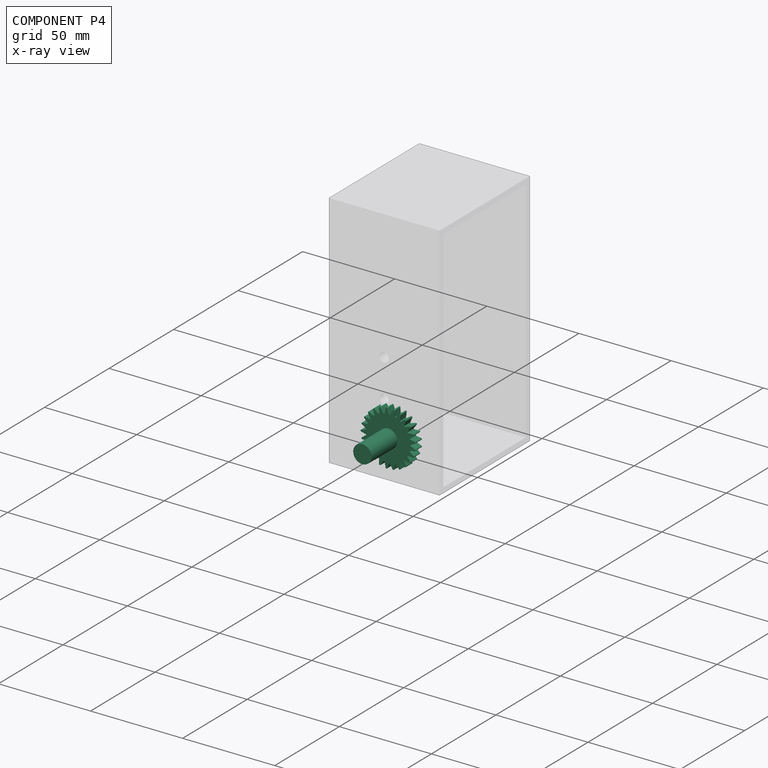
[diagram: component P4 — x-ray view]
COMPONENT P4 — recipe-attached (CADFS 00214776, mesh-verified: the recipe's output STEP matches this component's geometry to below the mesh-comparison resolution (tessellation chordal tolerance ~0.0737 mm)).
Held by: REVOLUTE mate "Revolute 1" to P1.
Construction recipe (FeatureScript — the CAD program that rebuilds this solid; sketch coordinates are in the units given by the * unit suffixes, e.g. mm):

FeatureScript 1511;
import(path : "onshape/std/geometry.fs", version : "1511.0");
import(path : "onshape/std/common.fs", version : "1511.0");
const mm = millimeter;
const VERTEX = EntityType.VERTEX;
const EDGE = EntityType.EDGE;
const FACE = EntityType.FACE;
const BODY = EntityType.BODY;
function v(x, y){return vector(x, y);}
function OD(order){return orderDisambiguation(order);}
function OSD(set){return originalSetDisambiguation(set);}
function TD(topology){return topologyDisambiguation(topology);}
function TDD(query){return trueDependencyDisambiguation(query);}
function sQuery(a, b, c) {return sketchEntityQuery(a, b, c);}

annotation { "Feature Type Name" : "Feature", "Feature Type Description" : "" }
export const myFeature = defineFeature(function(context is Context, id is Id, definition is map)
    precondition{}
    {
        {
            var Q0;
            Q0=qCreatedBy(makeId("Right.planeOp"),FACE);
            var sketch = newSketch(context, id + "F0", { "sketchPlane" : qUnion([Q0])});
            skArc(sketch, "E0", {"start": v(0.48, 14.64) * mm, "mid": v(0, 15) * mm, "end": v(-0.48, 14.64) * mm});
            skLineSegment(sketch, "E1", {"start": v(-0.48, 14.64) * mm, "end": v(-1.25, 11.93) * mm});
            skLineSegment(sketch, "E2.MirrorCS", {"start": v(0.48, 14.64) * mm, "end": v(1.25, 11.93) * mm});
            skCircle(sketch, "E3", {"center": v(0, 0) * mm, "radius": 12 * mm});
            skLineSegment(sketch, "E4", {"start": v(0, 0) * mm, "end": v(0, 9.86) * mm, "construction": true});
            skLineSegment(sketch, "E5.1.0", {"start": v(-4.1, 14.06) * mm, "end": v(-4.18, 11.25) * mm});
            skArc(sketch, "E5.1.1", {"start": v(-3.17, 14.3) * mm, "mid": v(-3.73, 14.53) * mm, "end": v(-4.1, 14.06) * mm});
            skLineSegment(sketch, "E5.1.2", {"start": v(-3.17, 14.3) * mm, "end": v(-1.76, 11.87) * mm});
            skLineSegment(sketch, "E5.2.0", {"start": v(-7.47, 12.6) * mm, "end": v(-6.85, 9.86) * mm});
            skArc(sketch, "E5.2.1", {"start": v(-6.63, 13.06) * mm, "mid": v(-7.23, 13.14) * mm, "end": v(-7.47, 12.6) * mm});
            skLineSegment(sketch, "E5.2.2", {"start": v(-6.63, 13.06) * mm, "end": v(-4.65, 11.06) * mm});
            skLineSegment(sketch, "E5.3.0", {"start": v(-10.37, 10.34) * mm, "end": v(-9.08, 7.84) * mm});
            skArc(sketch, "E5.3.1", {"start": v(-9.67, 11) * mm, "mid": v(-10.27, 10.93) * mm, "end": v(-10.37, 10.34) * mm});
            skLineSegment(sketch, "E5.3.2", {"start": v(-9.67, 11) * mm, "end": v(-7.26, 9.56) * mm});
            skArc(sketch, "E5.3.3", {"start": v(-9.08, 7.84) * mm, "mid": v(8.21, -8.75) * mm, "end": v(-7.26, 9.56) * mm});
            skLineSegment(sketch, "E5.4.0", {"start": v(-12.62, 7.44) * mm, "end": v(-10.75, 5.34) * mm});
            skArc(sketch, "E5.4.1", {"start": v(-12.1, 8.25) * mm, "mid": v(-12.66, 8.04) * mm, "end": v(-12.62, 7.44) * mm});
            skLineSegment(sketch, "E5.4.2", {"start": v(-12.1, 8.25) * mm, "end": v(-9.4, 7.45) * mm});
            skLineSegment(sketch, "E5.5.0", {"start": v(-14.07, 4.07) * mm, "end": v(-11.74, 2.5) * mm});
            skArc(sketch, "E5.5.1", {"start": v(-13.77, 4.98) * mm, "mid": v(-14.27, 4.64) * mm, "end": v(-14.07, 4.07) * mm});
            skLineSegment(sketch, "E5.5.2", {"start": v(-13.77, 4.98) * mm, "end": v(-10.96, 4.88) * mm});
            skLineSegment(sketch, "E5.6.0", {"start": v(-14.64, 0.44) * mm, "end": v(-11.99, -0.5) * mm});
            skArc(sketch, "E5.6.1", {"start": v(-14.58, 1.4) * mm, "mid": v(-14.97, 0.94) * mm, "end": v(-14.64, 0.44) * mm});
            skLineSegment(sketch, "E5.6.2", {"start": v(-14.58, 1.4) * mm, "end": v(-11.83, 2) * mm});
            skLineSegment(sketch, "E5.7.0", {"start": v(-14.29, -3.22) * mm, "end": v(-11.49, -3.47) * mm});
            skArc(sketch, "E5.7.1", {"start": v(-14.47, -2.27) * mm, "mid": v(-14.73, -2.81) * mm, "end": v(-14.29, -3.22) * mm});
            skLineSegment(sketch, "E5.7.2", {"start": v(-14.47, -2.27) * mm, "end": v(-11.96, -1) * mm});
            skLineSegment(sketch, "E5.8.0", {"start": v(-13.04, -6.67) * mm, "end": v(-10.27, -6.21) * mm});
            skArc(sketch, "E5.8.1", {"start": v(-13.45, -5.8) * mm, "mid": v(-13.57, -6.39) * mm, "end": v(-13.04, -6.67) * mm});
            skLineSegment(sketch, "E5.8.2", {"start": v(-13.45, -5.8) * mm, "end": v(-11.33, -3.95) * mm});
            skLineSegment(sketch, "E5.9.0", {"start": v(-10.97, -9.7) * mm, "end": v(-8.4, -8.57) * mm});
            skArc(sketch, "E5.9.1", {"start": v(-11.58, -8.96) * mm, "mid": v(-11.56, -9.56) * mm, "end": v(-10.97, -9.7) * mm});
            skLineSegment(sketch, "E5.9.2", {"start": v(-11.58, -8.96) * mm, "end": v(-10, -6.64) * mm});
            skLineSegment(sketch, "E5.10.0", {"start": v(-8.21, -12.12) * mm, "end": v(-6, -10.4) * mm});
            skArc(sketch, "E5.10.1", {"start": v(-9, -11.56) * mm, "mid": v(-8.82, -12.14) * mm, "end": v(-8.21, -12.12) * mm});
            skLineSegment(sketch, "E5.10.2", {"start": v(-9, -11.56) * mm, "end": v(-8.03, -8.92) * mm});
            skLineSegment(sketch, "E5.11.0", {"start": v(-4.94, -13.79) * mm, "end": v(-3.23, -11.56) * mm});
            skArc(sketch, "E5.11.1", {"start": v(-5.84, -13.43) * mm, "mid": v(-5.52, -13.95) * mm, "end": v(-4.94, -13.79) * mm});
            skLineSegment(sketch, "E5.11.2", {"start": v(-5.84, -13.43) * mm, "end": v(-5.56, -10.64) * mm});
            skArc(sketch, "E5.11.3", {"start": v(-9.08, 7.84) * mm, "mid": v(8.21, -8.75) * mm, "end": v(-7.26, 9.56) * mm});
            skLineSegment(sketch, "E5.12.0", {"start": v(-1.36, -14.58) * mm, "end": v(-0.25, -12) * mm});
            skArc(sketch, "E5.12.1", {"start": v(-2.31, -14.46) * mm, "mid": v(-1.88, -14.88) * mm, "end": v(-1.36, -14.58) * mm});
            skLineSegment(sketch, "E5.12.2", {"start": v(-2.31, -14.46) * mm, "end": v(-2.74, -11.68) * mm});
            skLineSegment(sketch, "E5.13.0", {"start": v(2.31, -14.46) * mm, "end": v(2.74, -11.68) * mm});
            skArc(sketch, "E5.13.1", {"start": v(1.36, -14.58) * mm, "mid": v(1.88, -14.88) * mm, "end": v(2.31, -14.46) * mm});
            skLineSegment(sketch, "E5.13.2", {"start": v(1.36, -14.58) * mm, "end": v(0.25, -12) * mm});
            skLineSegment(sketch, "E5.14.0", {"start": v(5.84, -13.43) * mm, "end": v(5.56, -10.64) * mm});
            skArc(sketch, "E5.14.1", {"start": v(4.94, -13.79) * mm, "mid": v(5.52, -13.95) * mm, "end": v(5.84, -13.43) * mm});
            skLineSegment(sketch, "E5.14.2", {"start": v(4.94, -13.79) * mm, "end": v(3.23, -11.56) * mm});
            skLineSegment(sketch, "E5.15.0", {"start": v(9, -11.56) * mm, "end": v(8.03, -8.92) * mm});
            skArc(sketch, "E5.15.1", {"start": v(8.21, -12.12) * mm, "mid": v(8.82, -12.14) * mm, "end": v(9, -11.56) * mm});
            skLineSegment(sketch, "E5.15.2", {"start": v(8.21, -12.12) * mm, "end": v(6, -10.4) * mm});
            skArc(sketch, "E5.15.3", {"start": v(-9.08, 7.84) * mm, "mid": v(8.21, -8.75) * mm, "end": v(-7.26, 9.56) * mm});
            skLineSegment(sketch, "E5.16.0", {"start": v(11.58, -8.96) * mm, "end": v(10, -6.64) * mm});
            skArc(sketch, "E5.16.1", {"start": v(10.97, -9.7) * mm, "mid": v(11.56, -9.56) * mm, "end": v(11.58, -8.96) * mm});
            skLineSegment(sketch, "E5.16.2", {"start": v(10.97, -9.7) * mm, "end": v(8.4, -8.57) * mm});
            skLineSegment(sketch, "E5.17.0", {"start": v(13.45, -5.8) * mm, "end": v(11.33, -3.95) * mm});
            skArc(sketch, "E5.17.1", {"start": v(13.04, -6.67) * mm, "mid": v(13.57, -6.39) * mm, "end": v(13.45, -5.8) * mm});
            skLineSegment(sketch, "E5.17.2", {"start": v(13.04, -6.67) * mm, "end": v(10.27, -6.21) * mm});
            skLineSegment(sketch, "E5.18.0", {"start": v(14.47, -2.27) * mm, "end": v(11.96, -1) * mm});
            skArc(sketch, "E5.18.1", {"start": v(14.29, -3.22) * mm, "mid": v(14.73, -2.81) * mm, "end": v(14.47, -2.27) * mm});
            skLineSegment(sketch, "E5.18.2", {"start": v(14.29, -3.22) * mm, "end": v(11.49, -3.47) * mm});
            skLineSegment(sketch, "E5.19.0", {"start": v(14.58, 1.4) * mm, "end": v(11.83, 2) * mm});
            skArc(sketch, "E5.19.1", {"start": v(14.64, 0.44) * mm, "mid": v(14.97, 0.94) * mm, "end": v(14.58, 1.4) * mm});
            skLineSegment(sketch, "E5.19.2", {"start": v(14.64, 0.44) * mm, "end": v(11.99, -0.5) * mm});
            skLineSegment(sketch, "E5.20.0", {"start": v(13.77, 4.98) * mm, "end": v(10.96, 4.88) * mm});
            skArc(sketch, "E5.20.1", {"start": v(14.07, 4.07) * mm, "mid": v(14.27, 4.64) * mm, "end": v(13.77, 4.98) * mm});
            skLineSegment(sketch, "E5.20.2", {"start": v(14.07, 4.07) * mm, "end": v(11.74, 2.5) * mm});
            skLineSegment(sketch, "E5.21.0", {"start": v(12.1, 8.25) * mm, "end": v(9.4, 7.45) * mm});
            skArc(sketch, "E5.21.1", {"start": v(12.62, 7.44) * mm, "mid": v(12.66, 8.04) * mm, "end": v(12.1, 8.25) * mm});
            skLineSegment(sketch, "E5.21.2", {"start": v(12.62, 7.44) * mm, "end": v(10.75, 5.34) * mm});
            skLineSegment(sketch, "E5.22.0", {"start": v(9.67, 11) * mm, "end": v(7.26, 9.56) * mm});
            skArc(sketch, "E5.22.1", {"start": v(10.37, 10.34) * mm, "mid": v(10.27, 10.93) * mm, "end": v(9.67, 11) * mm});
            skLineSegment(sketch, "E5.22.2", {"start": v(10.37, 10.34) * mm, "end": v(9.08, 7.84) * mm});
            skLineSegment(sketch, "E6.2.23.0", {"start": v(6.63, 13.06) * mm, "end": v(4.65, 11.06) * mm});
            skArc(sketch, "E6.3.23.0", {"start": v(7.47, 12.6) * mm, "mid": v(7.23, 13.14) * mm, "end": v(6.63, 13.06) * mm});
            skLineSegment(sketch, "E6.7.23.0", {"start": v(7.47, 12.6) * mm, "end": v(6.85, 9.86) * mm});
            skLineSegment(sketch, "E6.2.24.0", {"start": v(3.17, 14.3) * mm, "end": v(1.76, 11.87) * mm});
            skArc(sketch, "E6.3.24.0", {"start": v(4.1, 14.06) * mm, "mid": v(3.73, 14.53) * mm, "end": v(3.17, 14.3) * mm});
            skLineSegment(sketch, "E6.7.24.0", {"start": v(4.1, 14.06) * mm, "end": v(4.18, 11.25) * mm});
            skSolve(sketch);
        }
        {
            var Q0;
            Q0=qSketchRegion(id+"F0",true);
            extrude(context, id + "F1", {"entities" : qUnion([Q0]), "depth" : 5 * mm});
        }
        {
            var Q0;
            Q0=makeQuery(id+"F1.opExtrude","CAP_FACE",FACE,{"disambiguationData":[OSD([sQuery(id+"F0.wireOp",EDGE,"E0"),sQuery(id+"F0.wireOp",EDGE,"E1"),sQuery(id+"F0.wireOp",EDGE,"E2.MirrorCS"),sQuery(id+"F0.wireOp",EDGE,"E5.1.0"),sQuery(id+"F0.wireOp",EDGE,"E5.1.1"),sQuery(id+"F0.wireOp",EDGE,"E5.1.2"),sQuery(id+"F0.wireOp",EDGE,"E5.2.0"),sQuery(id+"F0.wireOp",EDGE,"E5.2.1"),sQuery(id+"F0.wireOp",EDGE,"E5.2.2"),sQuery(id+"F0.wireOp",EDGE,"E5.3.0"),sQuery(id+"F0.wireOp",EDGE,"E5.3.1"),sQuery(id+"F0.wireOp",EDGE,"E5.3.2"),sQuery(id+"F0.wireOp",EDGE,"E5.4.0"),sQuery(id+"F0.wireOp",EDGE,"E5.4.1"),sQuery(id+"F0.wireOp",EDGE,"E5.4.2"),sQuery(id+"F0.wireOp",EDGE,"E5.5.0"),sQuery(id+"F0.wireOp",EDGE,"E5.5.1"),sQuery(id+"F0.wireOp",EDGE,"E5.5.2"),sQuery(id+"F0.wireOp",EDGE,"E5.6.0"),sQuery(id+"F0.wireOp",EDGE,"E5.6.1"),sQuery(id+"F0.wireOp",EDGE,"E5.6.2"),sQuery(id+"F0.wireOp",EDGE,"E5.7.0"),sQuery(id+"F0.wireOp",EDGE,"E5.7.1"),sQuery(id+"F0.wireOp",EDGE,"E5.7.2"),sQuery(id+"F0.wireOp",EDGE,"E5.8.0"),sQuery(id+"F0.wireOp",EDGE,"E5.8.1"),sQuery(id+"F0.wireOp",EDGE,"E5.8.2"),sQuery(id+"F0.wireOp",EDGE,"E5.9.0"),sQuery(id+"F0.wireOp",EDGE,"E5.9.1"),sQuery(id+"F0.wireOp",EDGE,"E5.9.2"),sQuery(id+"F0.wireOp",EDGE,"E5.10.0"),sQuery(id+"F0.wireOp",EDGE,"E5.10.1"),sQuery(id+"F0.wireOp",EDGE,"E5.10.2"),sQuery(id+"F0.wireOp",EDGE,"E5.11.0"),sQuery(id+"F0.wireOp",EDGE,"E5.11.1"),sQuery(id+"F0.wireOp",EDGE,"E5.11.2"),sQuery(id+"F0.wireOp",EDGE,"E5.12.0"),sQuery(id+"F0.wireOp",EDGE,"E5.12.1"),sQuery(id+"F0.wireOp",EDGE,"E5.12.2"),sQuery(id+"F0.wireOp",EDGE,"E5.13.0"),sQuery(id+"F0.wireOp",EDGE,"E5.13.1"),sQuery(id+"F0.wireOp",EDGE,"E5.13.2"),sQuery(id+"F0.wireOp",EDGE,"E5.14.0"),sQuery(id+"F0.wireOp",EDGE,"E5.14.1"),sQuery(id+"F0.wireOp",EDGE,"E5.14.2"),sQuery(id+"F0.wireOp",EDGE,"E5.15.0"),sQuery(id+"F0.wireOp",EDGE,"E5.15.1"),sQuery(id+"F0.wireOp",EDGE,"E5.15.2"),sQuery(id+"F0.wireOp",EDGE,"E5.16.0"),sQuery(id+"F0.wireOp",EDGE,"E5.16.1"),sQuery(id+"F0.wireOp",EDGE,"E5.16.2"),sQuery(id+"F0.wireOp",EDGE,"E5.17.0"),sQuery(id+"F0.wireOp",EDGE,"E5.17.1"),sQuery(id+"F0.wireOp",EDGE,"E5.17.2"),sQuery(id+"F0.wireOp",EDGE,"E5.18.0"),sQuery(id+"F0.wireOp",EDGE,"E5.18.1"),sQuery(id+"F0.wireOp",EDGE,"E5.18.2"),sQuery(id+"F0.wireOp",EDGE,"E5.19.0"),sQuery(id+"F0.wireOp",EDGE,"E5.19.1"),sQuery(id+"F0.wireOp",EDGE,"E5.19.2"),sQuery(id+"F0.wireOp",EDGE,"E5.20.0"),sQuery(id+"F0.wireOp",EDGE,"E5.20.1"),sQuery(id+"F0.wireOp",EDGE,"E5.20.2"),sQuery(id+"F0.wireOp",EDGE,"E5.21.0"),sQuery(id+"F0.wireOp",EDGE,"E5.21.1"),sQuery(id+"F0.wireOp",EDGE,"E5.21.2"),sQuery(id+"F0.wireOp",EDGE,"E5.22.0"),sQuery(id+"F0.wireOp",EDGE,"E5.22.1"),sQuery(id+"F0.wireOp",EDGE,"E5.22.2"),sQuery(id+"F0.wireOp",EDGE,"E6.2.23.0"),sQuery(id+"F0.wireOp",EDGE,"E6.3.23.0"),sQuery(id+"F0.wireOp",EDGE,"E6.7.23.0"),sQuery(id+"F0.wireOp",EDGE,"E6.2.24.0"),sQuery(id+"F0.wireOp",EDGE,"E6.3.24.0"),sQuery(id+"F0.wireOp",EDGE,"E6.7.24.0"),sQuery(id+"F0.wireOp",EDGE,"E3")])],"isStart":false});
            var sketch = newSketch(context, id + "F2", { "sketchPlane" : qUnion([Q0])});
            skCircle(sketch, "E7", {"center": v(0, 0) * mm, "radius": 5 * mm});
            skSolve(sketch);
        }
        {
            var Q0;
            Q0=makeQuery(id+"F2.imprint","IMPRINT",FACE,{"disambiguationData":[TD([[makeQuery(id+"F2.imprint","IMPRINT",EDGE,{"derivedFrom":sQuery(id+"F2.wireOp",EDGE,"E7")}),1.0]])]});
            extrude(context, id + "F3", {"entities" : qUnion([Q0]), "operationType" : NewBodyOperationType.ADD, "depth" : 20 * mm});
        }
    });
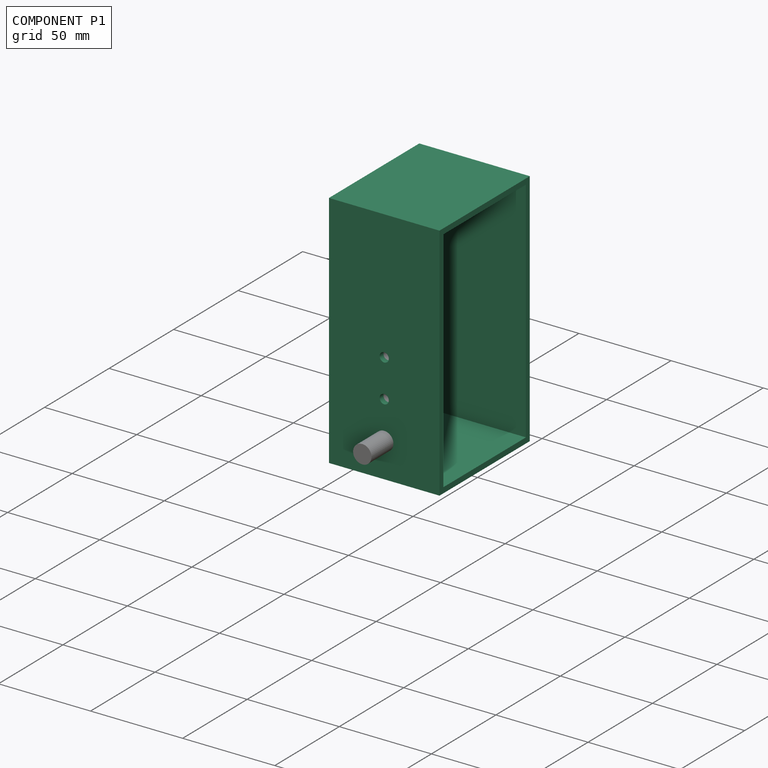
[diagram: component P1 — assembled]
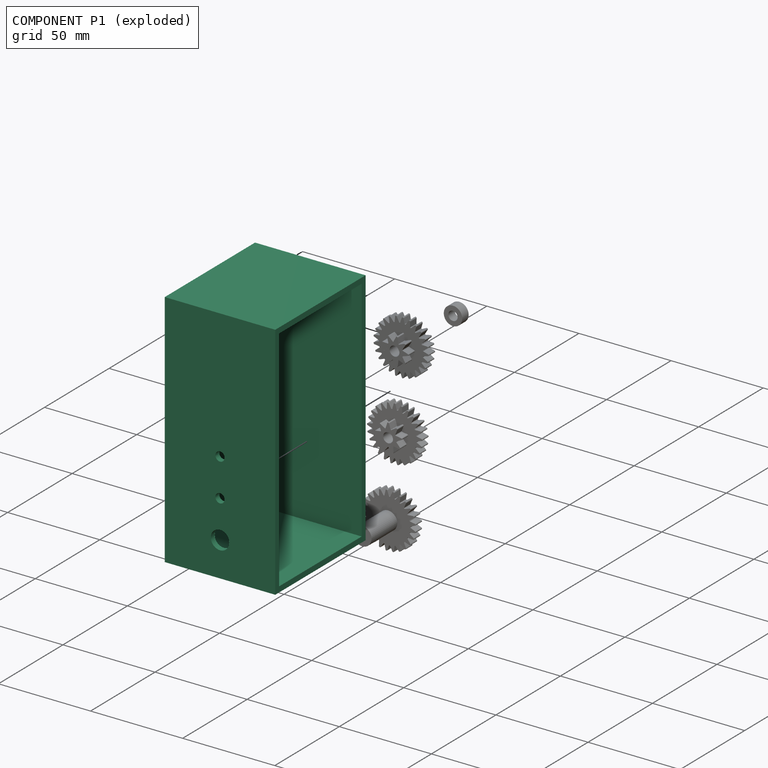
[diagram: component P1 — exploded]
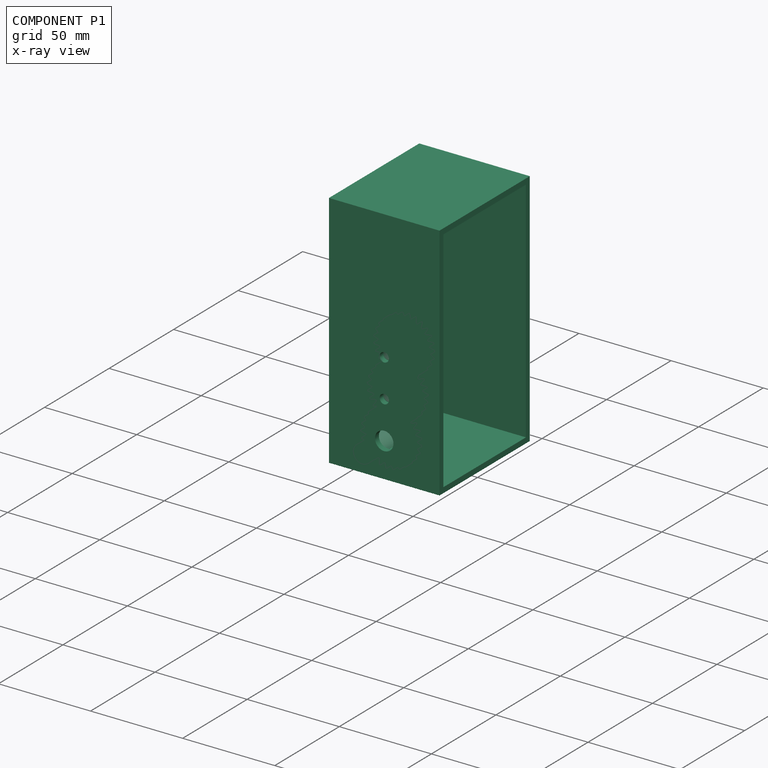
[diagram: component P1 — x-ray view]
COMPONENT P1 — recipe-attached (CADFS 00214773, mesh-verified: the recipe's output STEP matches this component's geometry to below the mesh-comparison resolution (tessellation chordal tolerance ~0.239 mm)).
Held by: PIN_SLOT mate "Pin slot 1" to P2; REVOLUTE mate "Revolute 1" to P4; PIN_SLOT mate "Pin slot 3" to P0.
Construction recipe (FeatureScript — the CAD program that rebuilds this solid; sketch coordinates are in the units given by the * unit suffixes, e.g. mm):

FeatureScript 1511;
import(path : "onshape/std/geometry.fs", version : "1511.0");
import(path : "onshape/std/common.fs", version : "1511.0");
const mm = millimeter;
const VERTEX = EntityType.VERTEX;
const EDGE = EntityType.EDGE;
const FACE = EntityType.FACE;
const BODY = EntityType.BODY;
function v(x, y){return vector(x, y);}
function OD(order){return orderDisambiguation(order);}
function OSD(set){return originalSetDisambiguation(set);}
function TD(topology){return topologyDisambiguation(topology);}
function TDD(query){return trueDependencyDisambiguation(query);}
function sQuery(a, b, c) {return sketchEntityQuery(a, b, c);}

annotation { "Feature Type Name" : "Feature", "Feature Type Description" : "" }
export const myFeature = defineFeature(function(context is Context, id is Id, definition is map)
    precondition{}
    {
        {
            var Q0;
            Q0=qCreatedBy(makeId("Right.planeOp"),FACE);
            var sketch = newSketch(context, id + "F0", { "sketchPlane" : qUnion([Q0])});
            skLineSegment(sketch, "E0.bottom", {"start": v(-4.98, 121.22) * mm, "end": v(65.02, 121.22) * mm});
            skLineSegment(sketch, "E0.top", {"start": v(-4.98, -8.78) * mm, "end": v(65.02, -8.78) * mm});
            skLineSegment(sketch, "E0.left", {"start": v(-4.98, 121.22) * mm, "end": v(-4.98, -8.78) * mm});
            skLineSegment(sketch, "E0.right", {"start": v(65.02, 121.22) * mm, "end": v(65.02, -8.78) * mm});
            skSolve(sketch);
        }
        {
            var Q0;
            Q0 = qSketchRegion(id + "F0", true);
            extrude(context, id + "F1", {"entities" : qUnion([Q0]), "depth" : 60 * mm});
        }
        {
            var Q0;
            Q0=makeQuery(id+"F1.opExtrude","CAP_FACE",FACE,{"disambiguationData":[OSD([sQuery(id+"F0.wireOp",EDGE,"E0.bottom"),sQuery(id+"F0.wireOp",EDGE,"E0.top"),sQuery(id+"F0.wireOp",EDGE,"E0.left"),sQuery(id+"F0.wireOp",EDGE,"E0.right")])],"isStart":false});
            shell(context, id + "F2", {"entities" : qUnion([Q0]), "thickness" : 3 * mm});
        }
        {
            var Q0;
            Q0=makeQuery(id+"F1.opExtrude","SWEPT_FACE",FACE,{"disambiguationData":[OSD([sQuery(id+"F0.wireOp",EDGE,"E0.left")])]});
            var sketch = newSketch(context, id + "F3", { "sketchPlane" : qUnion([Q0])});
            skCircle(sketch, "E1", {"center": v(30, 10.03) * mm, "radius": 5 * mm});
            skCircle(sketch, "E2", {"center": v(30, 30.53) * mm, "radius": 2.5 * mm});
            skCircle(sketch, "E3", {"center": v(30, 51.03) * mm, "radius": 2.5 * mm});
            skSolve(sketch);
        }
        {
            var Q0;
            Q0 = qSketchRegion(id + "F3", true);
            extrude(context, id + "F4", {"entities" : qUnion([Q0]), "operationType" : NewBodyOperationType.REMOVE, "endBound" : BoundingType.UP_TO_NEXT, "oppositeDirection" : true, "depth" : 25 * mm});
        }
    });
PROVENANCE & LICENSES
Assembly (occurrences, transforms, mates, per-part STEP geometry): AutoMate dataset, Zenodo record 7776208, CC0.
Construction recipes: CADFS (HuggingFace VladPyatov/CADFS, CC-BY-4.0, layered over the ABC dataset), FeatureScript reconstruction programs keyed by ABC model id.
Join: ABC meta listings map ABC model id -> Onshape documentId; within a shared document, parts are matched by geometric signature (bounding-box dims + volume at 0.1% relative tolerance, exact B-rep face/solid counts).
Verification: 5 of this assembly's 5 components carry a recipe attachment, and every attachment is mesh-verified: the CADFS STEP and the AutoMate member STEP were compared as meshes in their shared local frame (symmetric sampled-point-to-mesh distance); worst across the 5 attachments: below the mesh-comparison resolution (tessellation chordal tolerance ~0.239 mm) on a 159 mm part.
Renders: orthographic iso camera (az 35 / el 25); the floor grid conveys scale (grid pitch printed in each image; no ruler). In the exploded view each component is displaced by its stored offset vector: the offsets alone carry the explosion direction (mate normal/axis signs are not orientation cues and do not encode it), and separation distances are assigned per mate-chain, not proportionally to assembly-order depth.
